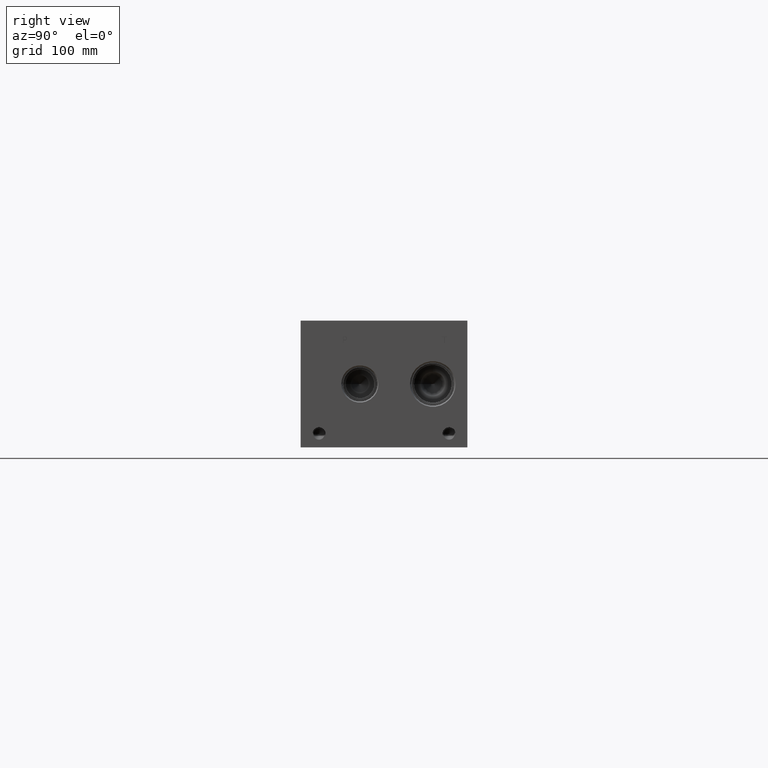
[diagram: clean part render]
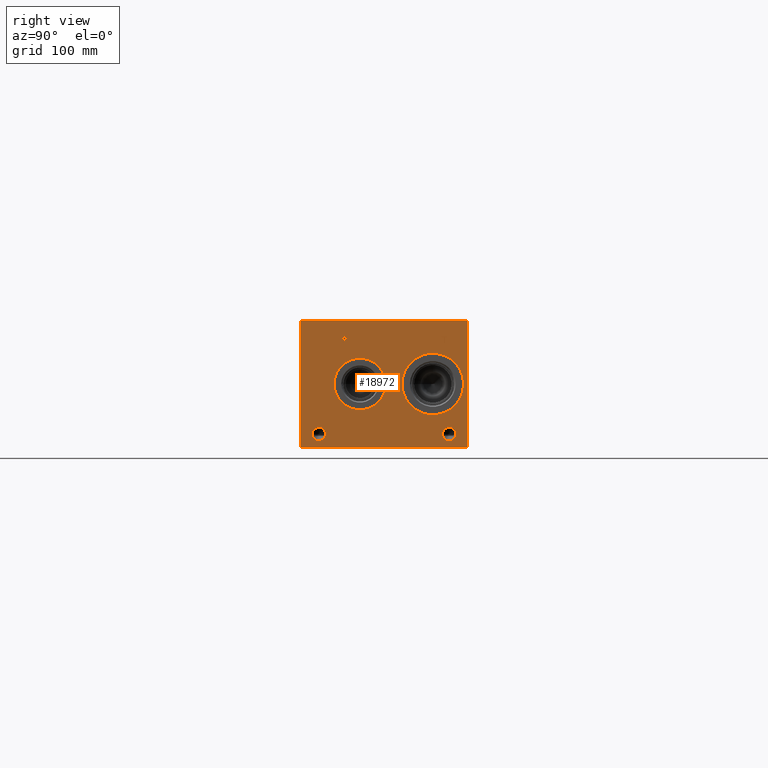
[diagram: same view with one face highlighted and labeled with its STEP entity id]
A machine part, right view. The second image highlights one B-rep face of the part: STEP entity #18972.
In plain terms, the highlighted planar face has unit normal (1, 0, 0).
Its self-contained STEP definition (entity closure, byte-faithful):
#593=CIRCLE('',#19838,29.2862);
#594=CIRCLE('',#19839,29.2862);
#595=CIRCLE('',#19840,24.5618);
#596=CIRCLE('',#19841,24.5618);
#597=CIRCLE('',#19842,6.35);
#598=CIRCLE('',#19843,6.35);
#599=CIRCLE('',#19844,6.35);
#600=CIRCLE('',#19845,6.35);
#1665=B_SPLINE_CURVE_WITH_KNOTS('',2,(#31316,#31317,#31318,#31319),
 .UNSPECIFIED.,.F.,.F.,(3,1,3),(0.,1.,2.),.UNSPECIFIED.);
#1667=B_SPLINE_CURVE_WITH_KNOTS('',2,(#31337,#31338,#31339,#31340),
 .UNSPECIFIED.,.F.,.F.,(3,1,3),(0.,1.,2.),.UNSPECIFIED.);
#1669=B_SPLINE_CURVE_WITH_KNOTS('',2,(#31386,#31387,#31388,#31389),
 .UNSPECIFIED.,.F.,.F.,(3,1,3),(0.,1.,2.),.UNSPECIFIED.);
#1671=B_SPLINE_CURVE_WITH_KNOTS('',2,(#31404,#31405,#31406,#31407),
 .UNSPECIFIED.,.F.,.F.,(3,1,3),(0.,1.,2.),.UNSPECIFIED.);
#1758=FACE_BOUND('',#3573,.T.);
#1759=FACE_BOUND('',#3574,.T.);
#1760=FACE_BOUND('',#3575,.T.);
#1761=FACE_BOUND('',#3576,.T.);
#1762=FACE_BOUND('',#3577,.T.);
#1763=FACE_BOUND('',#3578,.T.);
#2475=FACE_OUTER_BOUND('',#3572,.T.);
#3572=EDGE_LOOP('',(#15035,#15036,#15037,#15038));
#3573=EDGE_LOOP('',(#15039,#15040));
#3574=EDGE_LOOP('',(#15041,#15042));
#3575=EDGE_LOOP('',(#15043,#15044));
#3576=EDGE_LOOP('',(#15045,#15046));
#3577=EDGE_LOOP('',(#15047,#15048,#15049,#15050,#15051,#15052,#15053,#15054));
#3578=EDGE_LOOP('',(#15055,#15056,#15057,#15058,#15059,#15060,#15061,#15062,
#15063));
#4205=LINE('',#25663,#5789);
#5305=LINE('',#31349,#6889);
#5308=LINE('',#31355,#6892);
#5311=LINE('',#31361,#6895);
#5314=LINE('',#31367,#6898);
#5317=LINE('',#31373,#6901);
#5321=LINE('',#31415,#6905);
#5322=LINE('',#31417,#6906);
#5323=LINE('',#31418,#6907);
#5324=LINE('',#31437,#6908);
#5325=LINE('',#31439,#6909);
#5326=LINE('',#31441,#6910);
#5327=LINE('',#31443,#6911);
#5328=LINE('',#31445,#6912);
#5329=LINE('',#31447,#6913);
#5330=LINE('',#31449,#6914);
#5331=LINE('',#31450,#6915);
#5789=VECTOR('',#21024,10.);
#6889=VECTOR('',#22880,10.);
#6892=VECTOR('',#22885,10.);
#6895=VECTOR('',#22890,10.);
#6898=VECTOR('',#22895,10.);
#6901=VECTOR('',#22900,10.);
#6905=VECTOR('',#22908,10.);
#6906=VECTOR('',#22909,10.);
#6907=VECTOR('',#22910,10.);
#6908=VECTOR('',#22927,10.);
#6909=VECTOR('',#22928,10.);
#6910=VECTOR('',#22929,10.);
#6911=VECTOR('',#22930,10.);
#6912=VECTOR('',#22931,10.);
#6913=VECTOR('',#22932,10.);
#6914=VECTOR('',#22933,10.);
#6915=VECTOR('',#22934,10.);
#7362=VERTEX_POINT('',#25660);
#7363=VERTEX_POINT('',#25662);
#8381=VERTEX_POINT('',#31314);
#8382=VERTEX_POINT('',#31315);
#8385=VERTEX_POINT('',#31336);
#8387=VERTEX_POINT('',#31348);
#8389=VERTEX_POINT('',#31354);
#8391=VERTEX_POINT('',#31360);
#8393=VERTEX_POINT('',#31366);
#8395=VERTEX_POINT('',#31372);
#8397=VERTEX_POINT('',#31385);
#8399=VERTEX_POINT('',#31414);
#8400=VERTEX_POINT('',#31416);
#8401=VERTEX_POINT('',#31419);
#8402=VERTEX_POINT('',#31420);
#8403=VERTEX_POINT('',#31423);
#8404=VERTEX_POINT('',#31424);
#8405=VERTEX_POINT('',#31427);
#8406=VERTEX_POINT('',#31428);
#8407=VERTEX_POINT('',#31431);
#8408=VERTEX_POINT('',#31432);
#8409=VERTEX_POINT('',#31435);
#8410=VERTEX_POINT('',#31436);
#8411=VERTEX_POINT('',#31438);
#8412=VERTEX_POINT('',#31440);
#8413=VERTEX_POINT('',#31442);
#8414=VERTEX_POINT('',#31444);
#8415=VERTEX_POINT('',#31446);
#8416=VERTEX_POINT('',#31448);
#9264=EDGE_CURVE('',#7362,#7363,#4205,.T.);
#10779=EDGE_CURVE('',#8381,#8382,#1665,.T.);
#10783=EDGE_CURVE('',#8385,#8381,#1667,.T.);
#10786=EDGE_CURVE('',#8387,#8385,#5305,.T.);
#10789=EDGE_CURVE('',#8389,#8387,#5308,.T.);
#10792=EDGE_CURVE('',#8391,#8389,#5311,.T.);
#10795=EDGE_CURVE('',#8393,#8391,#5314,.T.);
#10798=EDGE_CURVE('',#8395,#8393,#5317,.T.);
#10801=EDGE_CURVE('',#8397,#8395,#1669,.T.);
#10804=EDGE_CURVE('',#8382,#8397,#1671,.T.);
#10806=EDGE_CURVE('',#7362,#8399,#5321,.T.);
#10807=EDGE_CURVE('',#8399,#8400,#5322,.T.);
#10808=EDGE_CURVE('',#7363,#8400,#5323,.T.);
#10809=EDGE_CURVE('',#8401,#8402,#593,.T.);
#10810=EDGE_CURVE('',#8402,#8401,#594,.T.);
#10811=EDGE_CURVE('',#8403,#8404,#595,.T.);
#10812=EDGE_CURVE('',#8404,#8403,#596,.T.);
#10813=EDGE_CURVE('',#8405,#8406,#597,.T.);
#10814=EDGE_CURVE('',#8406,#8405,#598,.T.);
#10815=EDGE_CURVE('',#8407,#8408,#599,.T.);
#10816=EDGE_CURVE('',#8408,#8407,#600,.T.);
#10817=EDGE_CURVE('',#8409,#8410,#5324,.T.);
#10818=EDGE_CURVE('',#8410,#8411,#5325,.T.);
#10819=EDGE_CURVE('',#8411,#8412,#5326,.T.);
#10820=EDGE_CURVE('',#8412,#8413,#5327,.T.);
#10821=EDGE_CURVE('',#8413,#8414,#5328,.T.);
#10822=EDGE_CURVE('',#8414,#8415,#5329,.T.);
#10823=EDGE_CURVE('',#8415,#8416,#5330,.T.);
#10824=EDGE_CURVE('',#8416,#8409,#5331,.T.);
#15035=ORIENTED_EDGE('',*,*,#10806,.T.);
#15036=ORIENTED_EDGE('',*,*,#10807,.T.);
#15037=ORIENTED_EDGE('',*,*,#10808,.F.);
#15038=ORIENTED_EDGE('',*,*,#9264,.F.);
#15039=ORIENTED_EDGE('',*,*,#10809,.T.);
#15040=ORIENTED_EDGE('',*,*,#10810,.T.);
#15041=ORIENTED_EDGE('',*,*,#10811,.T.);
#15042=ORIENTED_EDGE('',*,*,#10812,.T.);
#15043=ORIENTED_EDGE('',*,*,#10813,.T.);
#15044=ORIENTED_EDGE('',*,*,#10814,.T.);
#15045=ORIENTED_EDGE('',*,*,#10815,.T.);
#15046=ORIENTED_EDGE('',*,*,#10816,.T.);
#15047=ORIENTED_EDGE('',*,*,#10817,.T.);
#15048=ORIENTED_EDGE('',*,*,#10818,.T.);
#15049=ORIENTED_EDGE('',*,*,#10819,.T.);
#15050=ORIENTED_EDGE('',*,*,#10820,.T.);
#15051=ORIENTED_EDGE('',*,*,#10821,.T.);
#15052=ORIENTED_EDGE('',*,*,#10822,.T.);
#15053=ORIENTED_EDGE('',*,*,#10823,.T.);
#15054=ORIENTED_EDGE('',*,*,#10824,.T.);
#15055=ORIENTED_EDGE('',*,*,#10779,.T.);
#15056=ORIENTED_EDGE('',*,*,#10804,.T.);
#15057=ORIENTED_EDGE('',*,*,#10801,.T.);
#15058=ORIENTED_EDGE('',*,*,#10798,.T.);
#15059=ORIENTED_EDGE('',*,*,#10795,.T.);
#15060=ORIENTED_EDGE('',*,*,#10792,.T.);
#15061=ORIENTED_EDGE('',*,*,#10789,.T.);
#15062=ORIENTED_EDGE('',*,*,#10786,.T.);
#15063=ORIENTED_EDGE('',*,*,#10783,.T.);
#17714=PLANE('',#19837);
#18972=ADVANCED_FACE('',(#2475,#1758,#1759,#1760,#1761,#1762,#1763),#17714,
 .T.);
#19837=AXIS2_PLACEMENT_3D('',#31413,#22906,#22907);
#19838=AXIS2_PLACEMENT_3D('',#31421,#22911,#22912);
#19839=AXIS2_PLACEMENT_3D('',#31422,#22913,#22914);
#19840=AXIS2_PLACEMENT_3D('',#31425,#22915,#22916);
#19841=AXIS2_PLACEMENT_3D('',#31426,#22917,#22918);
#19842=AXIS2_PLACEMENT_3D('',#31429,#22919,#22920);
#19843=AXIS2_PLACEMENT_3D('',#31430,#22921,#22922);
#19844=AXIS2_PLACEMENT_3D('',#31433,#22923,#22924);
#19845=AXIS2_PLACEMENT_3D('',#31434,#22925,#22926);
#21024=DIRECTION('',(0.,0.,1.));
#22880=DIRECTION('',(0.,1.,0.));
#22885=DIRECTION('',(0.,0.,1.));
#22890=DIRECTION('',(0.,-1.,0.));
#22895=DIRECTION('',(0.,0.,-1.));
#22900=DIRECTION('',(0.,-1.,0.));
#22906=DIRECTION('center_axis',(1.,0.,0.));
#22907=DIRECTION('ref_axis',(0.,1.,0.));
#22908=DIRECTION('',(0.,1.,0.));
#22909=DIRECTION('',(0.,0.,1.));
#22910=DIRECTION('',(0.,1.,0.));
#22911=DIRECTION('center_axis',(-1.,0.,0.));
#22912=DIRECTION('ref_axis',(0.,1.,0.));
#22913=DIRECTION('center_axis',(-1.,0.,0.));
#22914=DIRECTION('ref_axis',(0.,1.,0.));
#22915=DIRECTION('center_axis',(-1.,0.,0.));
#22916=DIRECTION('ref_axis',(0.,1.,0.));
#22917=DIRECTION('center_axis',(-1.,0.,0.));
#22918=DIRECTION('ref_axis',(0.,1.,0.));
#22919=DIRECTION('center_axis',(-1.,0.,0.));
#22920=DIRECTION('ref_axis',(0.,1.,0.));
#22921=DIRECTION('center_axis',(-1.,0.,0.));
#22922=DIRECTION('ref_axis',(0.,1.,0.));
#22923=DIRECTION('center_axis',(-1.,0.,0.));
#22924=DIRECTION('ref_axis',(0.,1.,0.));
#22925=DIRECTION('center_axis',(-1.,0.,0.));
#22926=DIRECTION('ref_axis',(0.,1.,0.));
#22927=DIRECTION('',(0.,-1.,0.));
#22928=DIRECTION('',(0.,0.,1.));
#22929=DIRECTION('',(0.,-1.,0.));
#22930=DIRECTION('',(0.,0.,1.));
#22931=DIRECTION('',(0.,1.,0.));
#22932=DIRECTION('',(0.,0.,-1.));
#22933=DIRECTION('',(0.,-1.,0.));
#22934=DIRECTION('',(0.,0.,-1.));
#25660=CARTESIAN_POINT('',(666.75,0.,0.));
#25662=CARTESIAN_POINT('',(666.75,0.,120.65));
#25663=CARTESIAN_POINT('',(666.75,0.,0.));
#31314=CARTESIAN_POINT('',(666.75,43.3721672023594,105.140768143971));
#31315=CARTESIAN_POINT('',(666.75,44.128609654532,103.622737372604));
#31316=CARTESIAN_POINT('Ctrl Pts',(666.75,43.3721672023594,105.140768143971));
#31317=CARTESIAN_POINT('Ctrl Pts',(666.75,43.7272320268486,104.898912393956));
#31318=CARTESIAN_POINT('Ctrl Pts',(666.75,44.128609654532,104.152761675827));
#31319=CARTESIAN_POINT('Ctrl Pts',(666.75,44.128609654532,103.622737372604));
#31336=CARTESIAN_POINT('',(666.75,41.7100521543883,105.536999904633));
#31337=CARTESIAN_POINT('Ctrl Pts',(666.75,41.7100521543883,105.536999904633));
#31338=CARTESIAN_POINT('Ctrl Pts',(666.75,42.2760975267624,105.536999904633));
#31339=CARTESIAN_POINT('Ctrl Pts',(666.75,43.068561048086,105.351748691856));
#31340=CARTESIAN_POINT('Ctrl Pts',(666.75,43.3721672023594,105.140768143971));
#31348=CARTESIAN_POINT('',(666.75,40.1148333776978,105.536999904633));
#31349=CARTESIAN_POINT('',(666.75,20.0574166888489,105.536999904633));
#31354=CARTESIAN_POINT('',(666.75,40.1148333776978,99.187));
#31355=CARTESIAN_POINT('',(666.75,40.1148333776978,49.5935));
#31360=CARTESIAN_POINT('',(666.75,40.9587555692373,99.187));
#31361=CARTESIAN_POINT('',(666.75,20.4793777846186,99.187));
#31366=CARTESIAN_POINT('',(666.75,40.9587555692373,101.554098829928));
#31367=CARTESIAN_POINT('',(666.75,40.9587555692373,50.7770494149639));
#31372=CARTESIAN_POINT('',(666.75,41.6740310852372,101.554098829928));
#31373=CARTESIAN_POINT('',(666.75,20.8370155426186,101.554098829928));
#31385=CARTESIAN_POINT('',(666.75,43.5728560162011,102.21276980869));
#31386=CARTESIAN_POINT('Ctrl Pts',(666.75,43.5728560162011,102.21276980869));
#31387=CARTESIAN_POINT('Ctrl Pts',(666.75,43.2435205268198,101.888580186331));
#31388=CARTESIAN_POINT('Ctrl Pts',(666.75,42.3532855320861,101.554098829928));
#31389=CARTESIAN_POINT('Ctrl Pts',(666.75,41.6740310852372,101.554098829928));
#31404=CARTESIAN_POINT('Ctrl Pts',(666.75,44.128609654532,103.622737372604));
#31405=CARTESIAN_POINT('Ctrl Pts',(666.75,44.128609654532,103.211068010877));
#31406=CARTESIAN_POINT('Ctrl Pts',(666.75,43.8352952343018,102.47006315977));
#31407=CARTESIAN_POINT('Ctrl Pts',(666.75,43.5728560162011,102.21276980869));
#31413=CARTESIAN_POINT('Origin',(666.75,0.,0.));
#31414=CARTESIAN_POINT('',(666.75,158.75,0.));
#31415=CARTESIAN_POINT('',(666.75,0.,0.));
#31416=CARTESIAN_POINT('',(666.75,158.75,120.65));
#31417=CARTESIAN_POINT('',(666.75,158.75,0.));
#31418=CARTESIAN_POINT('',(666.75,0.,120.65));
#31419=CARTESIAN_POINT('',(666.75,155.1178,60.325));
#31420=CARTESIAN_POINT('',(666.75,96.5454,60.325));
#31421=CARTESIAN_POINT('Origin',(666.75,125.8316,60.325));
#31422=CARTESIAN_POINT('Origin',(666.75,125.8316,60.325));
#31423=CARTESIAN_POINT('',(666.75,81.0514,60.325));
#31424=CARTESIAN_POINT('',(666.75,31.9278,60.325));
#31425=CARTESIAN_POINT('Origin',(666.75,56.4896,60.325));
#31426=CARTESIAN_POINT('Origin',(666.75,56.4896,60.325));
#31427=CARTESIAN_POINT('',(666.75,147.6248,12.7));
#31428=CARTESIAN_POINT('',(666.75,134.9248,12.7));
#31429=CARTESIAN_POINT('Origin',(666.75,141.2748,12.7));
#31430=CARTESIAN_POINT('Origin',(666.75,141.2748,12.7));
#31431=CARTESIAN_POINT('',(666.75,23.7998,12.7));
#31432=CARTESIAN_POINT('',(666.75,11.0998,12.7));
#31433=CARTESIAN_POINT('Origin',(666.75,17.4498,12.7));
#31434=CARTESIAN_POINT('Origin',(666.75,17.4498,12.7));
#31435=CARTESIAN_POINT('',(666.75,137.182765271453,99.187));
#31436=CARTESIAN_POINT('',(666.75,136.338843079914,99.187));
#31437=CARTESIAN_POINT('',(666.75,68.5913826357265,99.187));
#31438=CARTESIAN_POINT('',(666.75,136.338843079914,104.785703319482));
#31439=CARTESIAN_POINT('',(666.75,136.338843079914,49.5935));
#31440=CARTESIAN_POINT('',(666.75,134.208454132978,104.785703319482));
#31441=CARTESIAN_POINT('',(666.75,68.1694215399568,104.785703319482));
#31442=CARTESIAN_POINT('',(666.75,134.208454132978,105.536999904633));
#31443=CARTESIAN_POINT('',(666.75,134.208454132978,52.3928516597408));
#31444=CARTESIAN_POINT('',(666.75,139.313154218388,105.536999904633));
#31445=CARTESIAN_POINT('',(666.75,67.1042270664892,105.536999904633));
#31446=CARTESIAN_POINT('',(666.75,139.313154218388,104.785703319482));
#31447=CARTESIAN_POINT('',(666.75,139.313154218388,52.7684999523163));
#31448=CARTESIAN_POINT('',(666.75,137.182765271453,104.785703319482));
#31449=CARTESIAN_POINT('',(666.75,69.656577109194,104.785703319482));
#31450=CARTESIAN_POINT('',(666.75,137.182765271453,52.3928516597408));